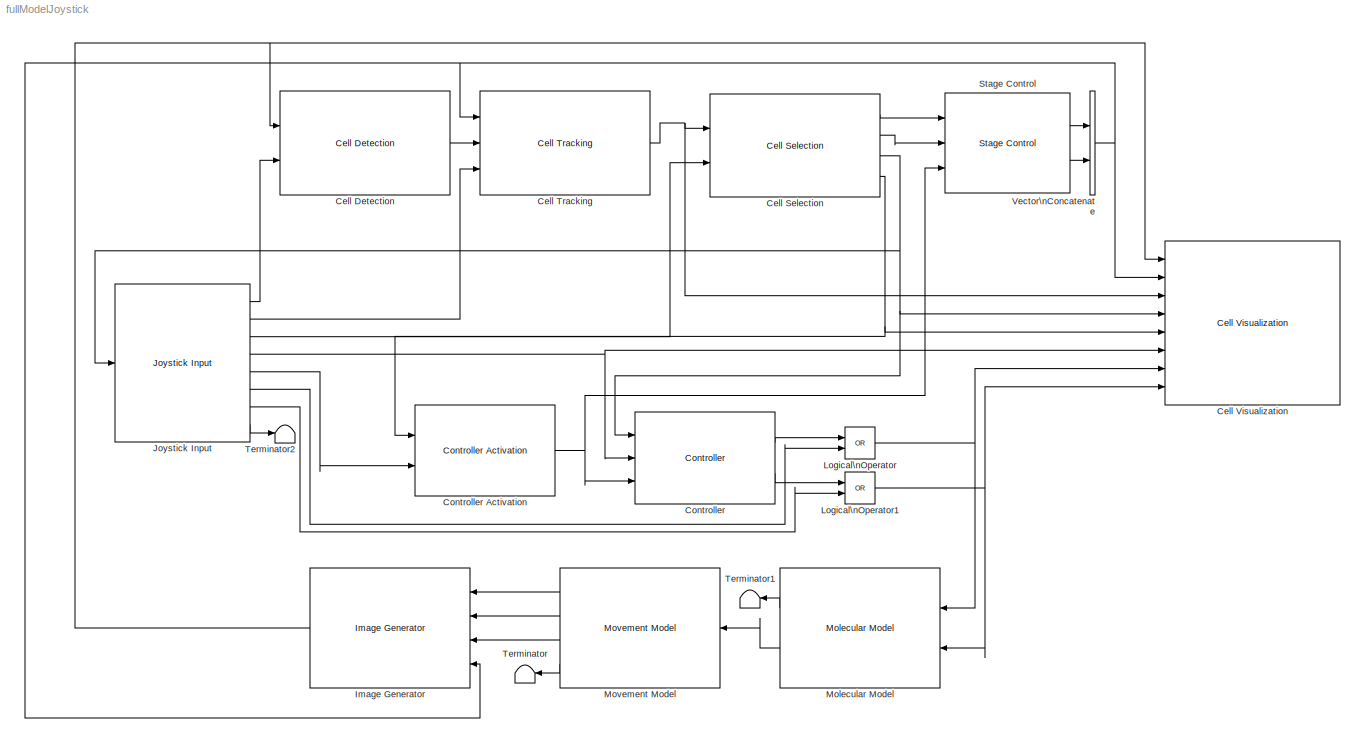
MODEL fullModelJoystick
KIND model
BLOCK [Reference] Cell Detection  REF=LemmingToolbox/Cell Detection
  FunctionWithSeparateData = off
  Ports = [2, 1]
  RTWMemSecDataConstants = Inherit from model
  RTWMemSecDataInternal = Inherit from model
  RTWMemSecDataParameters = Inherit from model
  RTWMemSecFuncExecute = Inherit from model
  RTWMemSecFuncInitTerm = Inherit from model
  SID = 1
  ShowPortLabels = FromPortIcon
  SourceBlock = LemmingToolbox/Cell Detection
  SourceType = Cell Detection
  SystemSampleTime = -1
  binning = 2
  cellSizeLowerLimit = 70
  cellSizeUpperLimit = 2000
  imageDim = [1344,1024]
  maxNumCells = 1000
  resizeScale = 0.5
  sampleTimes = [0.3, 0.1]
BLOCK [Reference] Cell Selection  REF=LemmingToolbox/Cell Selection
  FunctionWithSeparateData = off
  Ports = [2, 4]
  RTWMemSecDataConstants = Inherit from model
  RTWMemSecDataInternal = Inherit from model
  RTWMemSecDataParameters = Inherit from model
  RTWMemSecFuncExecute = Inherit from model
  RTWMemSecFuncInitTerm = Inherit from model
  SID = 2
  ShowPortLabels = FromPortIcon
  SourceBlock = LemmingToolbox/Cell Selection
  SourceType = Cell Tracking
  SystemSampleTime = -1
  maxNumCells = 1000
  numFrames = 2
  sampleTimes = [0.3, 0.1]
BLOCK [Reference] Cell Tracking  REF=LemmingToolbox/Cell Tracking
  FunctionWithSeparateData = off
  Ports = [3, 1]
  RTWMemSecDataConstants = Inherit from model
  RTWMemSecDataInternal = Inherit from model
  RTWMemSecDataParameters = Inherit from model
  RTWMemSecFuncExecute = Inherit from model
  RTWMemSecFuncInitTerm = Inherit from model
  SID = 3
  ShowPortLabels = FromPortIcon
  SourceBlock = LemmingToolbox/Cell Tracking
  SourceType = Cell Detection
  SystemSampleTime = -1
  maxDistance = 0.1
  maxNumCells = 1000
  sampleTimes = [0.3, 0.1]
  tKeepLost = 4
BLOCK [Reference] Cell Visualization  REF=LemmingToolbox/Cell Visualization
  FunctionWithSeparateData = off
  Ports = [8]
  RTWMemSecDataConstants = Inherit from model
  RTWMemSecDataInternal = Inherit from model
  RTWMemSecDataParameters = Inherit from model
  RTWMemSecFuncExecute = Inherit from model
  RTWMemSecFuncInitTerm = Inherit from model
  SID = 4
  ShowPortLabels = FromPortIcon
  SourceBlock = LemmingToolbox/Cell Visualization
  SourceType = Lemming Path Plotter
  SystemSampleTime = -1
  binning = 2
  coneAngle = pi/4
  coneWidth = 150
  imageDim = [1344,1024]
  maxNumCells = 1000
  outputFilename = fullModel.avi
  pathLength = 30
  sampleTimes = [0.3, 0.1]
BLOCK [Reference] Controller  REF=LemmingToolbox/Controller
  Ports = [3, 2]
  SID = 5
  SourceBlock = LemmingToolbox/Controller
  controller = @controllerHysteresis
  sampleTimes = [0.3, 0.1]
BLOCK [Reference] Controller Activation  REF=LemmingToolbox/Controller Activation
  FunctionWithSeparateData = off
  Ports = [2, 1]
  RTWMemSecDataConstants = Inherit from model
  RTWMemSecDataInternal = Inherit from model
  RTWMemSecDataParameters = Inherit from model
  RTWMemSecFuncExecute = Inherit from model
  RTWMemSecFuncInitTerm = Inherit from model
  SID = 6
  ShowPortLabels = FromPortIcon
  SourceBlock = LemmingToolbox/Controller Activation
  SystemSampleTime = -1
  isOn = off
BLOCK [Reference] Image Generator  REF=LemmingToolbox/Image Generator
  Ports = [4, 1]
  SID = 7
  SourceBlock = LemmingToolbox/Image Generator
  binning = 2
  numCells = 1
  sampleTime = [0.3, 0.1]
BLOCK [Reference] Joystick Input  REF=LemmingToolbox/Joystick Input
  FunctionWithSeparateData = off
  Ports = [1, 8]
  RTWMemSecDataConstants = Inherit from model
  RTWMemSecDataInternal = Inherit from model
  RTWMemSecDataParameters = Inherit from model
  RTWMemSecFuncExecute = Inherit from model
  RTWMemSecFuncInitTerm = Inherit from model
  SID = 8
  ShowPortLabels = FromPortIcon
  SourceBlock = LemmingToolbox/Joystick Input
  SystemSampleTime = 1
  minMaxThresh = [0.01, 0.02]
  sampleTimes = [0.1, 0]
BLOCK [Logic] Logical\nOperator
  AllPortsSameDT = off
  IconShape = distinctive
  Operator = OR
  OutDataTypeStr = boolean
  Ports = [2, 1]
  SID = 9
BLOCK [Logic] Logical\nOperator1
  AllPortsSameDT = off
  IconShape = distinctive
  Operator = OR
  OutDataTypeStr = boolean
  Ports = [2, 1]
  SID = 10
BLOCK [Reference] Molecular Model  REF=LemmingToolbox/Molecular Model
  Anker = 65
  AnkerProt = 50
  CheX = 20
  Ports = [2, 2]
  SID = 11
  SourceBlock = LemmingToolbox/Molecular Model
  asp = 1e-3
  cheSpeciesAttachedTo = CheX-PhyB & PIF3-Anker
  controlledCheSpecies = CheY
  molecModel = Spiro
  useOrgParameters = on
BLOCK [Reference] Movement Model  REF=LemmingToolbox/Movement Model
  Ports = [1, 4]
  SID = 12
  SourceBlock = LemmingToolbox/Movement Model
  binning = 2
  imageDim = [1344,1024]
  initialCondition = [0.5, 0.5, 0]
  pixelSize = 6.45 / 40
  sampleTimes = [0.03, 0]
BLOCK [Reference] Stage Control  REF=LemmingToolbox/Stage Control
  FunctionWithSeparateData = off
  Ports = [3, 2]
  RTWMemSecDataConstants = Inherit from model
  RTWMemSecDataInternal = Inherit from model
  RTWMemSecDataParameters = Inherit from model
  RTWMemSecFuncExecute = Inherit from model
  RTWMemSecFuncInitTerm = Inherit from model
  SID = 13
  ShowPortLabels = FromPortIcon
  SourceBlock = LemmingToolbox/Stage Control
  SystemSampleTime = -1
  activate = on
  border = 0.25
  controlMicroscope = off
  cooldown = 2
  initialCondition = [0, 0]
  sampleTimes = [0.3, 0.1]
BLOCK [Terminator] Terminator
  SID = 14
BLOCK [Terminator] Terminator1
  SID = 15
BLOCK [Terminator] Terminator2
  SID = 16
BLOCK [Concatenate] Vector\nConcatenate
  ConcatenateDimension = 2
  Ports = [2, 1]
  SID = 17
LINE Cell Detection:1 -> Cell Tracking:2
LINE Cell Selection:1 -> Stage Control:1
LINE Cell Selection:2 -> Stage Control:2
NET Cell Selection:3 -> Cell Visualization:4, Controller:1, Joystick Input:1
NET Cell Selection:4 -> Cell Visualization:5, Controller Activation:1
NET Cell Tracking:1 -> Cell Selection:1, Cell Visualization:3
NET Controller Activation:1 -> Controller:3, Stage Control:3
LINE Controller:1 -> Logical\nOperator:1
LINE Controller:2 -> Logical\nOperator1:1
NET Image Generator:1 -> Cell Detection:1, Cell Visualization:1
LINE Joystick Input:1 -> Cell Detection:2
LINE Joystick Input:2 -> Cell Tracking:3
LINE Joystick Input:3 -> Cell Selection:2
NET Joystick Input:4 -> Cell Visualization:6, Controller:2
LINE Joystick Input:5 -> Controller Activation:2
LINE Joystick Input:6 -> Logical\nOperator:2
LINE Joystick Input:7 -> Logical\nOperator1:2
LINE Joystick Input:8 -> Terminator2:1
NET Logical\nOperator1:1 -> Cell Visualization:8, Molecular Model:2
NET Logical\nOperator:1 -> Cell Visualization:7, Molecular Model:1
LINE Molecular Model:1 -> Terminator1:1
LINE Molecular Model:2 -> Movement Model:1
LINE Movement Model:1 -> Image Generator:1
LINE Movement Model:2 -> Image Generator:2
LINE Movement Model:3 -> Image Generator:3
LINE Movement Model:4 -> Terminator:1
LINE Stage Control:1 -> Vector\nConcatenate:1
LINE Stage Control:2 -> Vector\nConcatenate:2
NET Vector\nConcatenate:1 -> Cell Tracking:1, Cell Visualization:2, Image Generator:4
note: NET lines group one-source signal fan-out (src -> all destinations, sorted); 1:1 wires keep LINE
